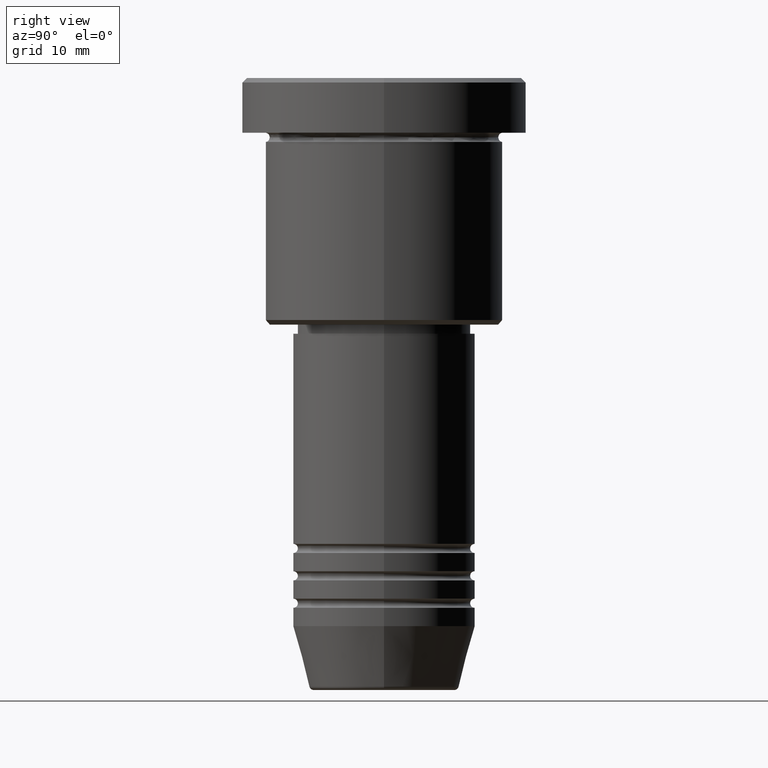
[diagram: clean part render]
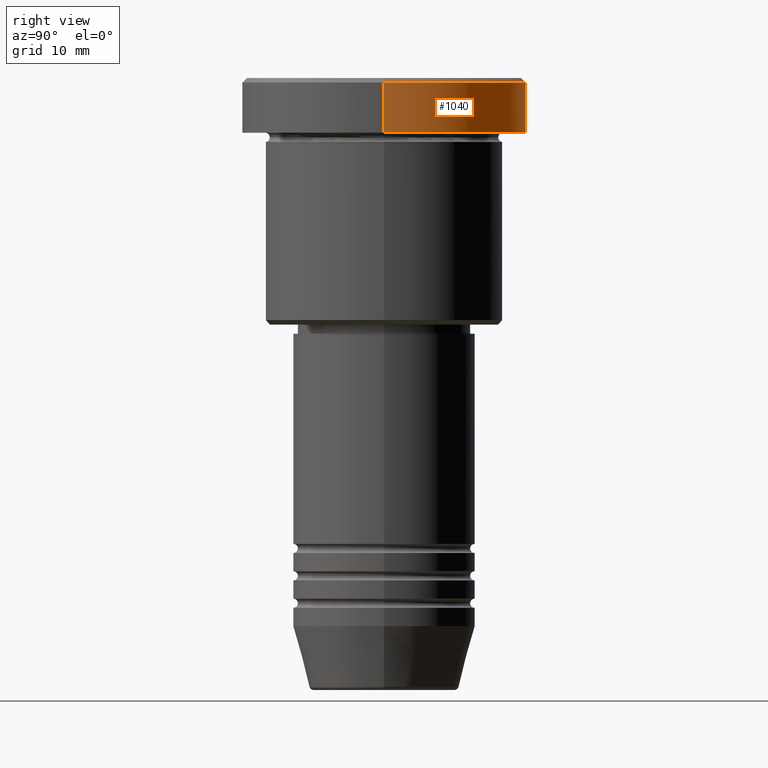
[diagram: same view with one face highlighted and labeled with its STEP entity id]
A machine part, right view. The second image highlights one B-rep face of the part: STEP entity #1040.
In plain terms, the highlighted cylindrical surface (partial cylindrical patch) has radius 15.5 mm, axis along (-0, -0, 1).
Its self-contained STEP definition (entity closure, byte-faithful):
#4 = ORIENTED_EDGE ( 'NONE', *, *, #249, .T. ) ;
#12 = DIRECTION ( 'NONE',  ( 0.000000000000000000, 0.000000000000000000, -1.000000000000000000 ) ) ;
#20 = ORIENTED_EDGE ( 'NONE', *, *, #1022, .T. ) ;
#69 = LINE ( 'NONE', #983, #1095 ) ;
#97 = CARTESIAN_POINT ( 'NONE',  ( 0.000000000000000000, 0.000000000000000000, -0.5000000000000057732 ) ) ;
#107 = AXIS2_PLACEMENT_3D ( 'NONE', #212, #679, #1049 ) ;
#137 = CARTESIAN_POINT ( 'NONE',  ( 0.000000000000000000, 0.000000000000000000, 0.000000000000000000 ) ) ;
#143 = VERTEX_POINT ( 'NONE', #958 ) ;
#157 = FACE_OUTER_BOUND ( 'NONE', #1020, .T. ) ;
#198 = DIRECTION ( 'NONE',  ( 1.000000000000000000, 0.000000000000000000, 0.000000000000000000 ) ) ;
#212 = CARTESIAN_POINT ( 'NONE',  ( 0.000000000000000000, 0.000000000000000000, -5.999999999999995559 ) ) ;
#247 = ORIENTED_EDGE ( 'NONE', *, *, #1062, .T. ) ;
#249 = EDGE_CURVE ( 'NONE', #498, #750, #354, .T. ) ;
#287 = CARTESIAN_POINT ( 'NONE',  ( -15.50000000000000000, 1.898202538678397557E-15, -5.999999999999995559 ) ) ;
#322 = DIRECTION ( 'NONE',  ( -0.000000000000000000, -0.000000000000000000, 1.000000000000000000 ) ) ;
#354 = CIRCLE ( 'NONE', #1094, 15.50000000000000000 ) ;
#423 = VERTEX_POINT ( 'NONE', #287 ) ;
#483 = ORIENTED_EDGE ( 'NONE', *, *, #580, .F. ) ;
#496 = DIRECTION ( 'NONE',  ( -0.000000000000000000, -0.000000000000000000, 1.000000000000000000 ) ) ;
#498 = VERTEX_POINT ( 'NONE', #667 ) ;
#518 = DIRECTION ( 'NONE',  ( 1.000000000000000000, 0.000000000000000000, 0.000000000000000000 ) ) ;
#580 = EDGE_CURVE ( 'NONE', #143, #750, #69, .T. ) ;
#667 = CARTESIAN_POINT ( 'NONE',  ( -15.50000000000000000, 1.898202538678397557E-15, -0.5000000000000057732 ) ) ;
#679 = DIRECTION ( 'NONE',  ( -0.000000000000000000, -0.000000000000000000, 1.000000000000000000 ) ) ;
#743 = CIRCLE ( 'NONE', #107, 15.50000000000000000 ) ;
#750 = VERTEX_POINT ( 'NONE', #1111 ) ;
#801 = DIRECTION ( 'NONE',  ( -0.000000000000000000, -0.000000000000000000, 1.000000000000000000 ) ) ;
#894 = CARTESIAN_POINT ( 'NONE',  ( -15.50000000000000000, 1.898202538678397557E-15, 0.000000000000000000 ) ) ;
#958 = CARTESIAN_POINT ( 'NONE',  ( 15.50000000000000000, 0.000000000000000000, -5.999999999999995559 ) ) ;
#964 = VECTOR ( 'NONE', #496, 1000.000000000000000 ) ;
#981 = CYLINDRICAL_SURFACE ( 'NONE', #1017, 15.50000000000000000 ) ;
#983 = CARTESIAN_POINT ( 'NONE',  ( 15.50000000000000000, 0.000000000000000000, 0.000000000000000000 ) ) ;
#1017 = AXIS2_PLACEMENT_3D ( 'NONE', #137, #322, #518 ) ;
#1020 = EDGE_LOOP ( 'NONE', ( #20, #247, #4, #483 ) ) ;
#1022 = EDGE_CURVE ( 'NONE', #143, #423, #743, .T. ) ;
#1040 = ADVANCED_FACE ( 'NONE', ( #157 ), #981, .T. ) ;
#1049 = DIRECTION ( 'NONE',  ( 1.000000000000000000, 0.000000000000000000, 0.000000000000000000 ) ) ;
#1062 = EDGE_CURVE ( 'NONE', #423, #498, #1165, .T. ) ;
#1094 = AXIS2_PLACEMENT_3D ( 'NONE', #97, #12, #198 ) ;
#1095 = VECTOR ( 'NONE', #801, 1000.000000000000000 ) ;
#1111 = CARTESIAN_POINT ( 'NONE',  ( 15.50000000000000000, 0.000000000000000000, -0.5000000000000057732 ) ) ;
#1165 = LINE ( 'NONE', #894, #964 ) ;